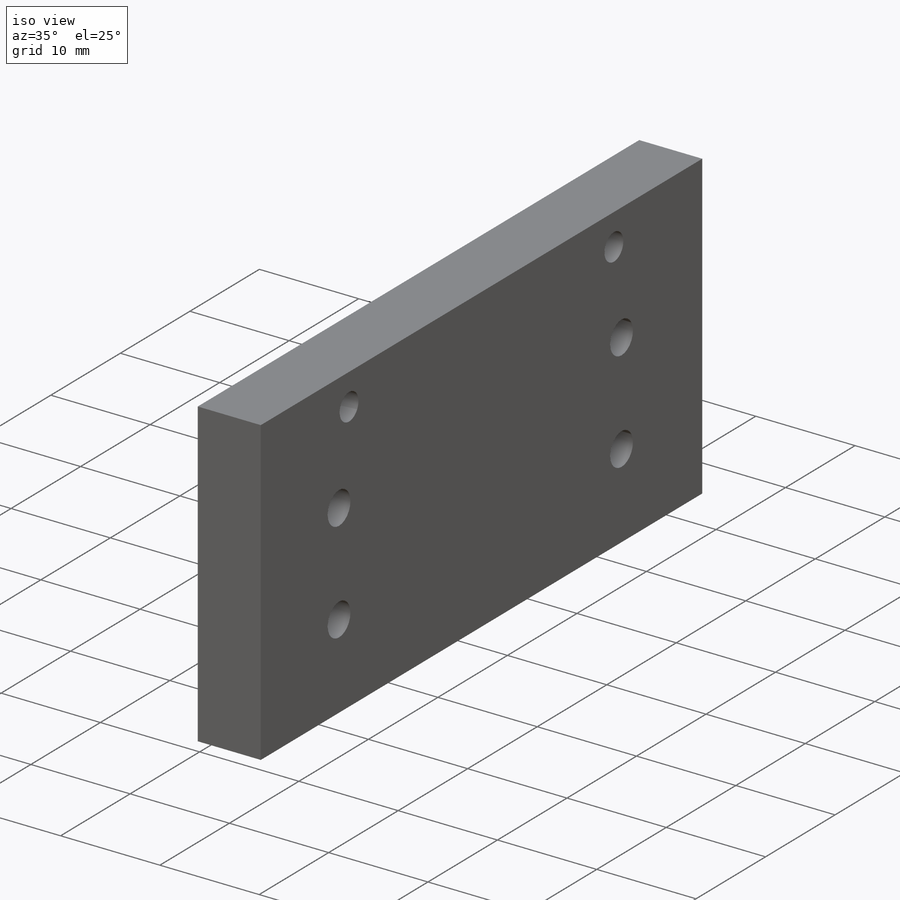
[diagram: iso view]
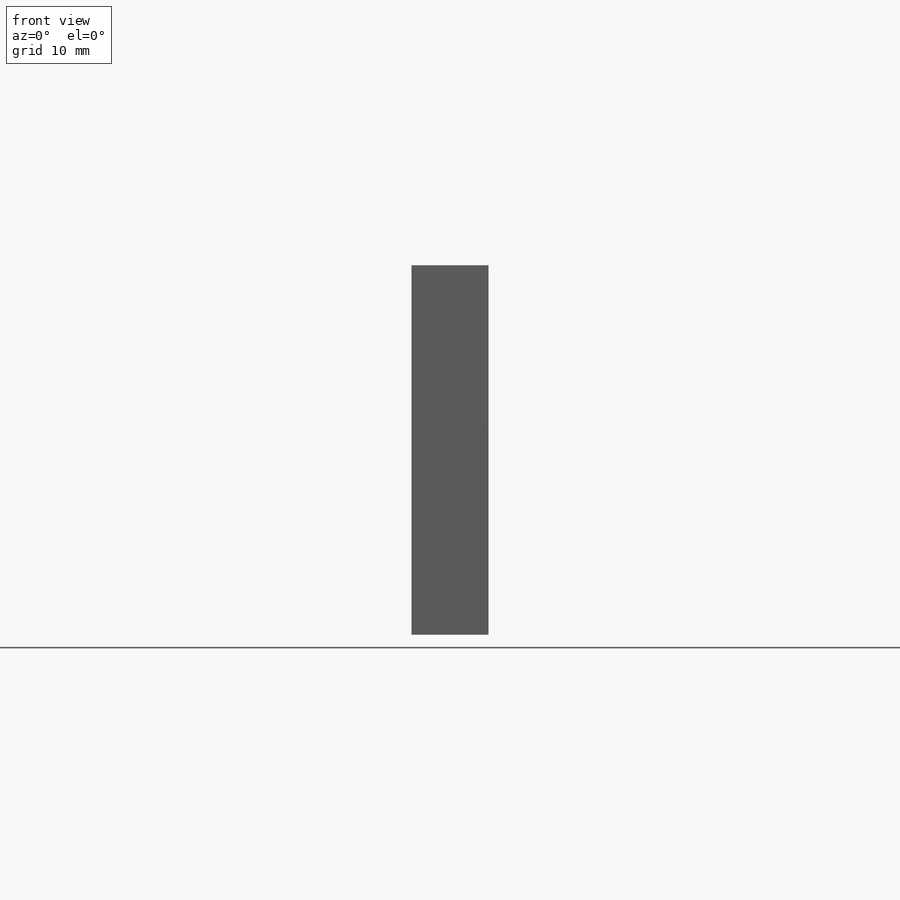
[diagram: front view]
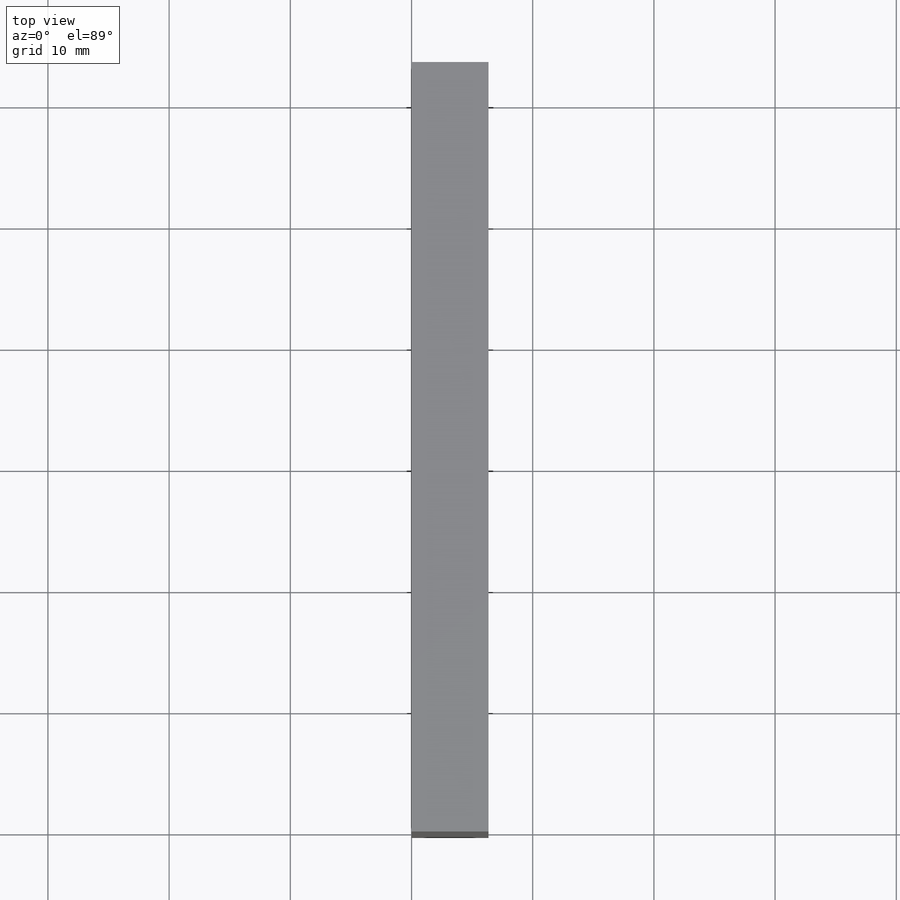
[diagram: top view]
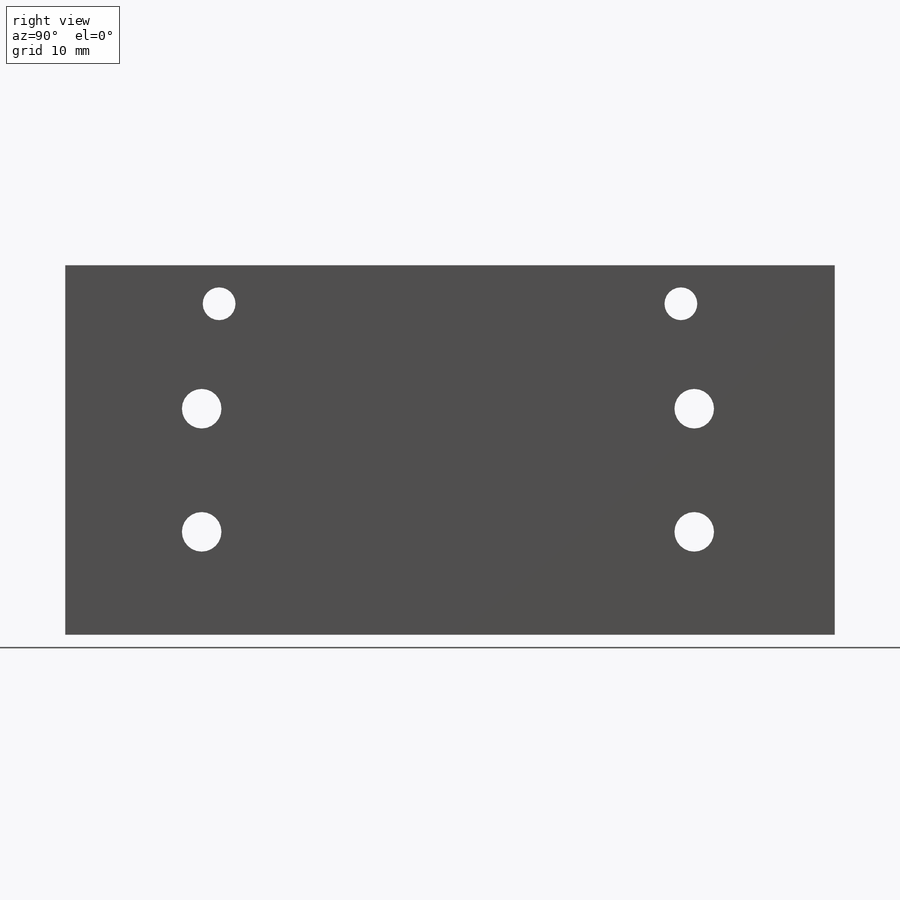
[diagram: right view]
SOLIDWORKS PART (.sldprt)
format: sldprt  version: not decoded by parser v0  size: 223,232 bytes
history: native  units: mm
features: sketch x7, hole x3, material x1, extrude x1, pattern_linear x1 (+16 scaffold rows collapsed)
feature tree (29):
  scaffold x16  (default folders/planes/origin — collapsed)
  material  "Material <not specified>"
  sketch  "Sketch1"  dims[D1=63.5mm D2=30.48mm]
  extrude  "Boss-Extrude1"  Depth=6.35mm
  hole  "#8 (0.199) Diameter Hole1"  Diameter=5.0546mm Depth=6.35mm
  sketch  "Sketch3"  dims[D1=31.75mm D2=15.875mm D3=6.35mm D4=6.35mm]
  sketch  "Sketch2"  dims[hole-wizard template sketch: 47 standard entries collapsed; hole parameters kept: c15.Hole Depth=6.35mm c15.D3=~14.816244mm c15.Drill Angle=118.0deg]
  hole  "Tap Drill for #6-32 Tap1"  Diameter=2.7051mm Depth=6.35mm
  sketch  "Sketch7"  dims[D1=3.175mm D2=3.175mm D3=38.1mm D4=12.7mm D5=6.35mm]
  sketch  "Sketch6"  dims[hole-wizard template sketch: 54 standard entries collapsed; hole parameters kept: c17.Thru Hole Dia.=2.7051mm c17.Thru Hole Depth=6.35mm c17.Near C'Sink Dia.=3.9751mm c17.D4=~3.666174mm c17.Near C'Sink Angle=90.0deg]
  hole  "#5 Clearance Hole1"  Diameter=3.2639mm Depth=12.7mm
  sketch  "Sketch9"
  sketch  "Sketch8"  dims[hole-wizard template sketch: 47 standard entries collapsed; hole parameters kept: c15.Hole Depth=12.7mm c15.D3=~14.816244mm c15.Drill Angle=118.0deg]
  pattern_linear  "LPattern1"  Count1=2 Count2=2 Spacing1=40.64mm Spacing2=10.16mm
decode coverage: 11 of 12 modeling features carry decoded parameters
note: ~ marks probable driven/reference dimensions
note: suppression state not decoded; provenance and decode notes live in map.json
